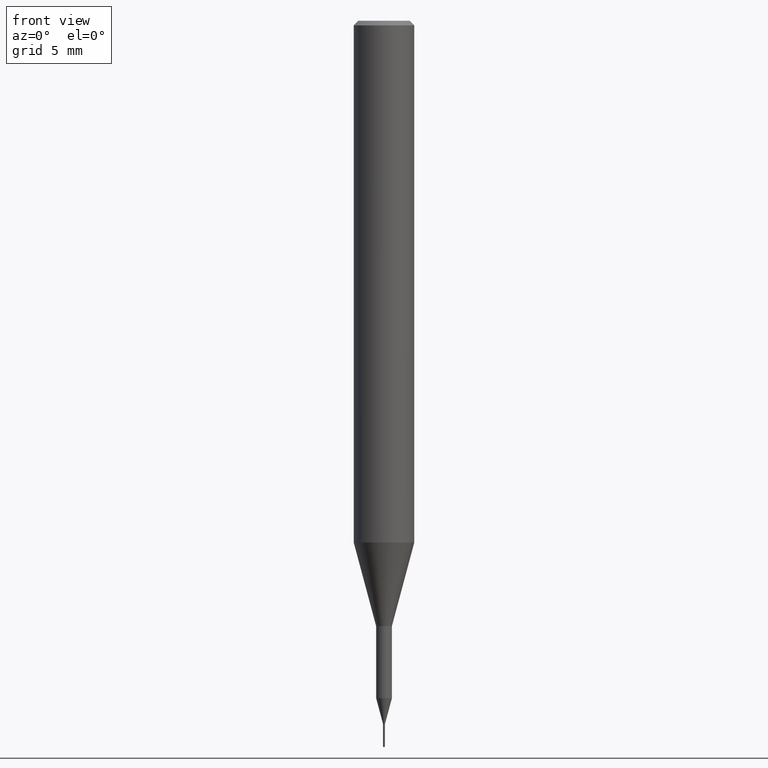
[diagram: clean part render]
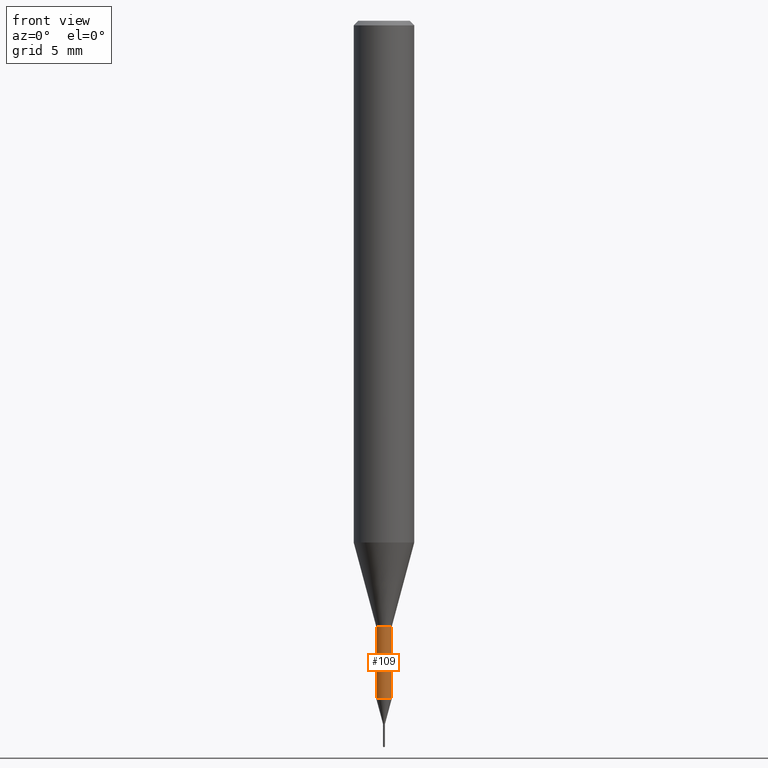
[diagram: same view with one face highlighted and labeled with its STEP entity id]
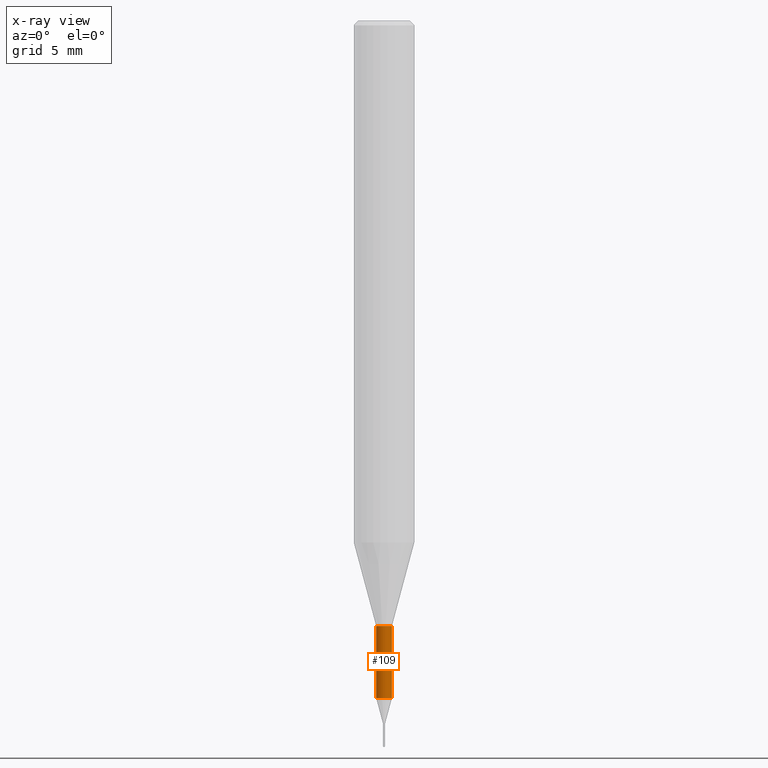
[diagram: x-ray of the same camera — body ghosted, the highlighted face saturated]
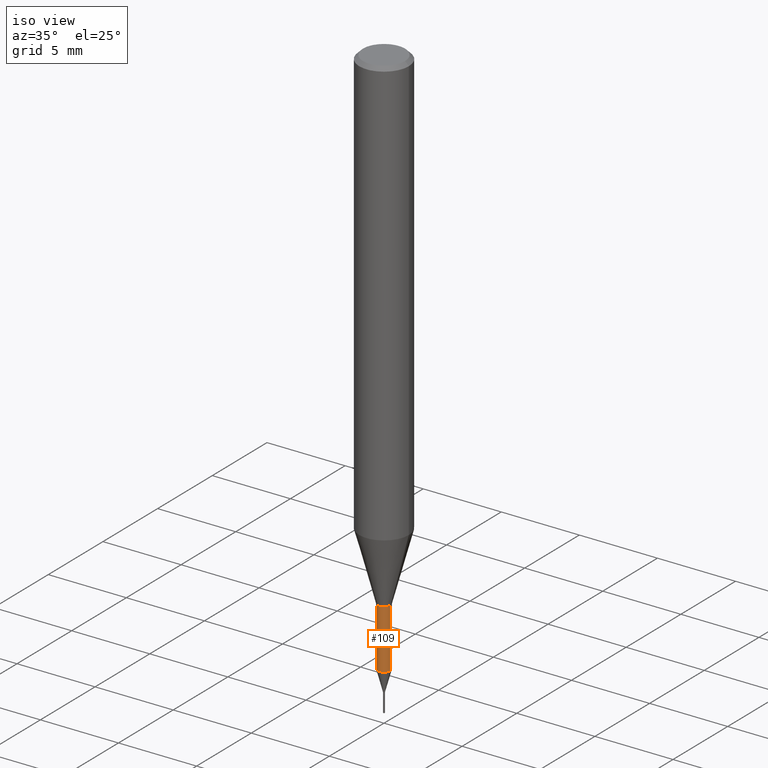
[diagram: same view with one face highlighted and labeled with its STEP entity id]
A machine part, front view. The second image highlights one B-rep face of the part: STEP entity #109.
The next image is the same camera in x-ray: the body ghosted, the highlighted face saturated — about 0% of this face is hidden behind the body in this view.
A second angle (iso view) of the same face is appended — the face is thin or edge-on in the first view.
In plain terms, the highlighted cylindrical surface (edge-blend (fillet) strip) has radius 0.4127 mm, axis along (-0, 0, 1).
Its self-contained STEP definition (entity closure, byte-faithful):
#6 = FACE_OUTER_BOUND ( 'NONE', #204, .T. ) ;
#7 = DIRECTION ( 'NONE',  ( 1.000000000000000000, -6.982962677686258033E-15, 0.000000000000000000 ) ) ;
#13 = CIRCLE ( 'NONE', #309, 0.01624999999999999709 ) ;
#22 = EDGE_CURVE ( 'NONE', #178, #585, #268, .T. ) ;
#27 = DIRECTION ( 'NONE',  ( -2.445468806185136877E-29, 3.491481338843145188E-15, 1.000000000000000000 ) ) ;
#44 = DIRECTION ( 'NONE',  ( -2.445468806185136597E-29, 3.491481338843145583E-15, 1.000000000000000000 ) ) ;
#48 = EDGE_CURVE ( 'NONE', #178, #162, #79, .T. ) ;
#79 = CIRCLE ( 'NONE', #561, 0.01625000000000000056 ) ;
#82 = EDGE_CURVE ( 'NONE', #585, #403, #13, .T. ) ;
#87 = ORIENTED_EDGE ( 'NONE', *, *, #82, .F. ) ;
#88 = AXIS2_PLACEMENT_3D ( 'NONE', #475, #524, #343 ) ;
#101 = CARTESIAN_POINT ( 'NONE',  ( 0.01625000000000000056, -4.997421050571713203E-15, -1.398818275992143922 ) ) ;
#109 = ADVANCED_FACE ( 'NONE', ( #6 ), #198, .T. ) ;
#129 = CARTESIAN_POINT ( 'NONE',  ( 3.056836007731421306E-29, -4.364351673553932471E-15, -1.250000000000000000 ) ) ;
#162 = VERTEX_POINT ( 'NONE', #101 ) ;
#178 = VERTEX_POINT ( 'NONE', #480 ) ;
#198 = CYLINDRICAL_SURFACE ( 'NONE', #88, 0.01624999999999999709 ) ;
#201 = CARTESIAN_POINT ( 'NONE',  ( 0.01624999999999999709, -4.477824817066334148E-15, -1.250000000000000000 ) ) ;
#204 = EDGE_LOOP ( 'NONE', ( #582, #557, #402, #87 ) ) ;
#234 = DIRECTION ( 'NONE',  ( -2.445468806185136597E-29, 3.491481338843145583E-15, 1.000000000000000000 ) ) ;
#268 = LINE ( 'NONE', #312, #396 ) ;
#277 = DIRECTION ( 'NONE',  ( -2.445468806185136877E-29, 3.491481338843145188E-15, 1.000000000000000000 ) ) ;
#279 = EDGE_CURVE ( 'NONE', #162, #403, #583, .T. ) ;
#309 = AXIS2_PLACEMENT_3D ( 'NONE', #129, #44, #431 ) ;
#312 = CARTESIAN_POINT ( 'NONE',  ( -0.01624999999999999709, 1.154631945610162595E-16, -7.993269521664220284E-31 ) ) ;
#342 = CARTESIAN_POINT ( 'NONE',  ( -0.01624999999999999709, -4.508686595745605419E-15, -1.250000000000000000 ) ) ;
#343 = DIRECTION ( 'NONE',  ( 1.000000000000000000, -6.982962677686267499E-15, 4.876176775795936353E-29 ) ) ;
#396 = VECTOR ( 'NONE', #27, 39.37007874015748143 ) ;
#402 = ORIENTED_EDGE ( 'NONE', *, *, #279, .T. ) ;
#403 = VERTEX_POINT ( 'NONE', #201 ) ;
#411 = CARTESIAN_POINT ( 'NONE',  ( 0.01624999999999999709, -1.134731435124018242E-16, 7.923787260668394963E-31 ) ) ;
#431 = DIRECTION ( 'NONE',  ( 1.000000000000000000, -6.982962677686288799E-15, 0.000000000000000000 ) ) ;
#475 = CARTESIAN_POINT ( 'NONE',  ( 0.000000000000000000, 0.000000000000000000, 0.000000000000000000 ) ) ;
#480 = CARTESIAN_POINT ( 'NONE',  ( -0.01625000000000000056, -4.768484712498295341E-15, -1.398818275992143922 ) ) ;
#495 = VECTOR ( 'NONE', #277, 39.37007874015748143 ) ;
#506 = CARTESIAN_POINT ( 'NONE',  ( 3.420766459460459311E-29, -4.883947907059311527E-15, -1.398818275992143922 ) ) ;
#524 = DIRECTION ( 'NONE',  ( -2.445468806185136597E-29, 3.491481338843145583E-15, 1.000000000000000000 ) ) ;
#557 = ORIENTED_EDGE ( 'NONE', *, *, #48, .T. ) ;
#561 = AXIS2_PLACEMENT_3D ( 'NONE', #506, #234, #7 ) ;
#582 = ORIENTED_EDGE ( 'NONE', *, *, #22, .F. ) ;
#583 = LINE ( 'NONE', #411, #495 ) ;
#585 = VERTEX_POINT ( 'NONE', #342 ) ;